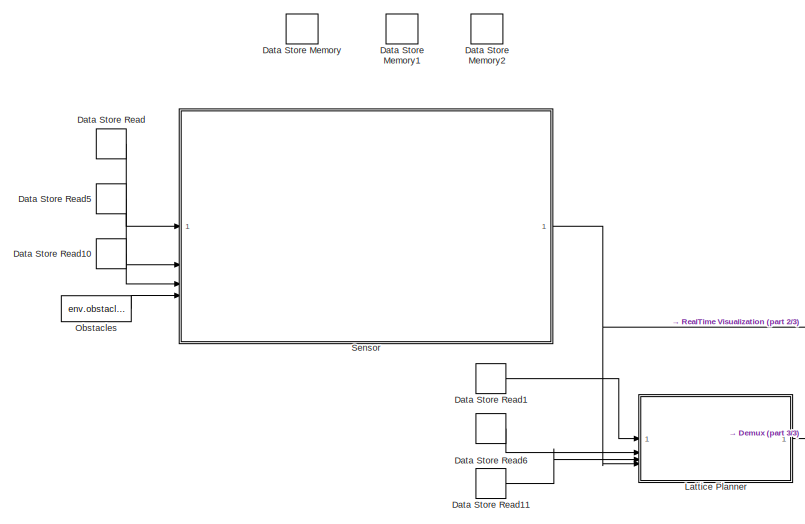
[diagram: root canvas - part 1/3, top left region]
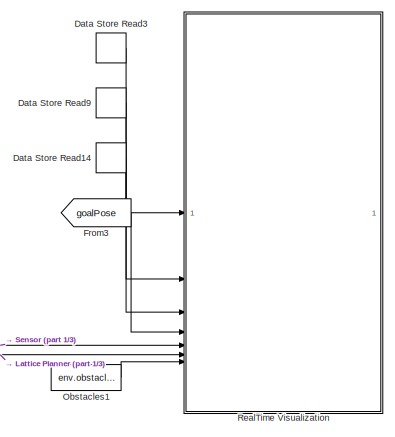
[diagram: root canvas - part 2/3, middle right region]
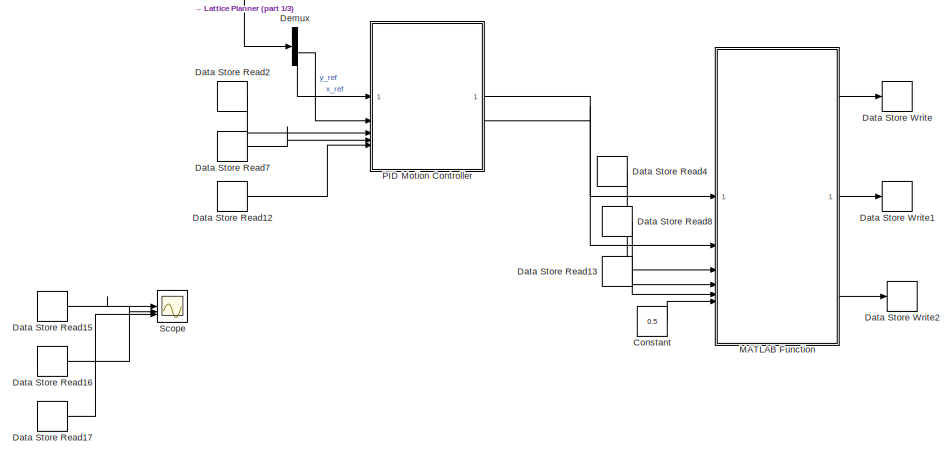
[diagram: root canvas - part 3/3, bottom center region]
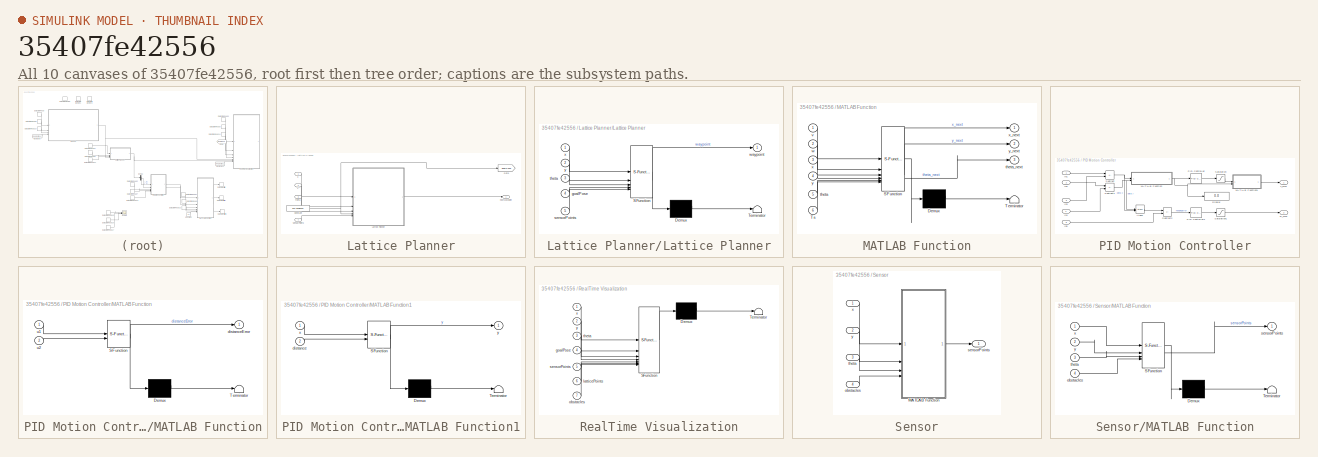
[diagram: thumbnail index - all 10 canvases of the model, root first then tree order]
MODEL slx_35407fe42556
KIND model
CONFIG AbsTol = auto
CONFIG EnableMultiTasking = off
CONFIG FixedStep = 0.5
CONFIG MaxStep = auto
CONFIG MinStep = auto
CONFIG RelTol = 1e-3
CONFIG SampleTimeConstraint = Unconstrained
CONFIG SolverName = FixedStepAuto
CONFIG StartTime = 0.0
CONFIG StopTime = 30
BLOCK [Constant] Constant
  Value = 0.5
BLOCK [DataStoreMemory] Data Store Memory
  DataStoreName = x
  InitialValue = env.startPose(1)
  ShowAdditionalParam = off
  WriteAfterWriteMsg = warning
BLOCK [DataStoreMemory] Data Store Memory1
  DataStoreName = y
  InitialValue = env.startPose(2)
  ShowAdditionalParam = off
  WriteAfterWriteMsg = warning
BLOCK [DataStoreMemory] Data Store Memory2
  DataStoreName = theta
  InitialValue = env.startPose(3)
  ShowAdditionalParam = off
  WriteAfterWriteMsg = warning
BLOCK [DataStoreRead] Data Store Read
  DataStoreName = x
  IndexOptions = Index vector (dialog)
  Indices = 1
  OutputSizes = 1
BLOCK [DataStoreRead] Data Store Read1
  DataStoreName = x
  IndexOptions = Index vector (dialog)
  Indices = 1
  OutputSizes = 1
BLOCK [DataStoreRead] Data Store Read10
  DataStoreName = theta
  IndexOptions = Index vector (dialog)
  Indices = 1
  OutputSizes = 1
BLOCK [DataStoreRead] Data Store Read11
  DataStoreName = theta
  IndexOptions = Index vector (dialog)
  Indices = 1
  OutputSizes = 1
BLOCK [DataStoreRead] Data Store Read12
  DataStoreName = theta
  IndexOptions = Index vector (dialog)
  Indices = 1
  OutputSizes = 1
BLOCK [DataStoreRead] Data Store Read13
  DataStoreName = theta
  IndexOptions = Index vector (dialog)
  Indices = 1
  OutputSizes = 1
BLOCK [DataStoreRead] Data Store Read14
  DataStoreName = theta
  IndexOptions = Index vector (dialog)
  Indices = 1
  OutputSizes = 1
BLOCK [DataStoreRead] Data Store Read15
  DataStoreName = x
  IndexOptions = Index vector (dialog)
  Indices = 1
  OutputSizes = 1
BLOCK [DataStoreRead] Data Store Read16
  DataStoreName = y
  IndexOptions = Index vector (dialog)
  Indices = 1
  OutputSizes = 1
BLOCK [DataStoreRead] Data Store Read17
  DataStoreName = theta
  IndexOptions = Index vector (dialog)
  Indices = 1
  OutputSizes = 1
BLOCK [DataStoreRead] Data Store Read2
  DataStoreName = x
  IndexOptions = Index vector (dialog)
  Indices = 1
  OutputSizes = 1
BLOCK [DataStoreRead] Data Store Read3
  DataStoreName = x
  IndexOptions = Index vector (dialog)
  Indices = 1
  OutputSizes = 1
BLOCK [DataStoreRead] Data Store Read4
  DataStoreName = x
  IndexOptions = Index vector (dialog)
  Indices = 1
  OutputSizes = 1
BLOCK [DataStoreRead] Data Store Read5
  DataStoreName = y
  IndexOptions = Index vector (dialog)
  Indices = 1
  OutputSizes = 1
BLOCK [DataStoreRead] Data Store Read6
  DataStoreName = y
  IndexOptions = Index vector (dialog)
  Indices = 1
  OutputSizes = 1
BLOCK [DataStoreRead] Data Store Read7
  DataStoreName = y
  IndexOptions = Index vector (dialog)
  Indices = 1
  OutputSizes = 1
BLOCK [DataStoreRead] Data Store Read8
  DataStoreName = y
  IndexOptions = Index vector (dialog)
  Indices = 1
  OutputSizes = 1
BLOCK [DataStoreRead] Data Store Read9
  DataStoreName = y
  IndexOptions = Index vector (dialog)
  Indices = 1
  OutputSizes = 1
BLOCK [DataStoreWrite] Data Store Write
  DataStoreName = x
  IndexOptions = Index vector (dialog)
  Indices = 1
  OutputSizes = 1
BLOCK [DataStoreWrite] Data Store Write1
  DataStoreName = y
  IndexOptions = Index vector (dialog)
  Indices = 1
  OutputSizes = 1
BLOCK [DataStoreWrite] Data Store Write2
  DataStoreName = theta
  IndexOptions = Index vector (dialog)
  Indices = 1
  OutputSizes = 1
BLOCK [Demux] Demux
  Outputs = 2
BLOCK [From] From3
  GotoTag = goalPose
  TagVisibility = global
BLOCK [SubSystem] Lattice Planner
  Priority = 2
BLOCK [Constant] Lattice Planner/Constant
  Value = env.goalPose
BLOCK [Goto] Lattice Planner/Goto
  GotoTag = goalPose
  TagVisibility = global
BLOCK [SubSystem] Lattice Planner/Lattice Planner
  ErrorFcn = Stateflow.Translate.translate
  PermitHierarchicalResolution = ExplicitOnly
  SFBlockType = MATLAB Function
  TreatAsAtomicUnit = on
BLOCK [Demux] Lattice Planner/Lattice Planner/ Demux 
  Outputs = 1
BLOCK [S-Function] Lattice Planner/Lattice Planner/ SFunction 
  EnableBusSupport = on
  FunctionName = sf_sfun
  PortCounts = [5 2]
  SFcnIsStateOwnerBlock = off
  SFunctionDeploymentMode = off
  Tag = Stateflow S-Function 1
BLOCK [Terminator] Lattice Planner/Lattice Planner/ Terminator 
BLOCK [Inport] Lattice Planner/Lattice Planner/goalPose
  Port = 4
BLOCK [Inport] Lattice Planner/Lattice Planner/sensorPoints
  Port = 5
BLOCK [Inport] Lattice Planner/Lattice Planner/theta
  Port = 3
BLOCK [Outport] Lattice Planner/Lattice Planner/waypoint
BLOCK [Inport] Lattice Planner/Lattice Planner/x
BLOCK [Inport] Lattice Planner/Lattice Planner/y
  Port = 2
BLOCK [Outport] Lattice Planner/nextWaypoint
BLOCK [Inport] Lattice Planner/sensorPoints
  Port = 4
BLOCK [Inport] Lattice Planner/theta
  Port = 3
BLOCK [Inport] Lattice Planner/x
BLOCK [Inport] Lattice Planner/y
  Port = 2
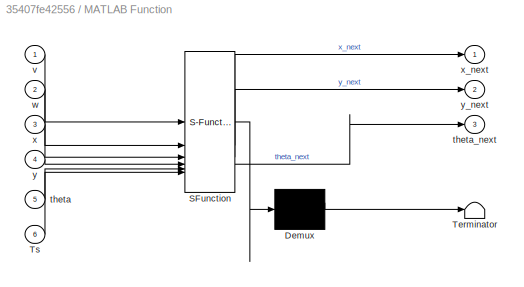
BLOCK [SubSystem] MATLAB Function
  ErrorFcn = Stateflow.Translate.translate
  PermitHierarchicalResolution = ExplicitOnly
  Priority = 4
  SFBlockType = MATLAB Function
  TreatAsAtomicUnit = on
BLOCK [Demux] MATLAB Function/ Demux 
  Outputs = 1
BLOCK [S-Function] MATLAB Function/ SFunction 
  EnableBusSupport = on
  FunctionName = sf_sfun
  PortCounts = [6 4]
  SFcnIsStateOwnerBlock = off
  SFunctionDeploymentMode = off
  Tag = Stateflow S-Function 7
BLOCK [Terminator] MATLAB Function/ Terminator 
BLOCK [Inport] MATLAB Function/Ts
  Port = 6
BLOCK [Inport] MATLAB Function/theta
  Port = 5
BLOCK [Outport] MATLAB Function/theta_next
  Port = 3
BLOCK [Inport] MATLAB Function/v
BLOCK [Inport] MATLAB Function/w
  Port = 2
BLOCK [Inport] MATLAB Function/x
  Port = 3
BLOCK [Outport] MATLAB Function/x_next
BLOCK [Inport] MATLAB Function/y
  Port = 4
BLOCK [Outport] MATLAB Function/y_next
  Port = 2
BLOCK [Constant] Obstacles
  Value = env.obstacles
BLOCK [Constant] Obstacles1
  Value = env.obstacles
BLOCK [SubSystem] PID Motion Controller
  Priority = 3
BLOCK [Trigonometry] PID Motion Controller/Atan2
  Operator = atan2
BLOCK [Display] PID Motion Controller/Display
  Decimation = 1
BLOCK [Inport] PID Motion Controller/In1
BLOCK [Inport] PID Motion Controller/In2
  Port = 2
BLOCK [Inport] PID Motion Controller/In3
  Port = 3
BLOCK [Inport] PID Motion Controller/In4
  Port = 4
BLOCK [Inport] PID Motion Controller/In5
  Port = 5
BLOCK [SubSystem] PID Motion Controller/MATLAB Function
  ErrorFcn = Stateflow.Translate.translate
  PermitHierarchicalResolution = ExplicitOnly
  SFBlockType = MATLAB Function
  TreatAsAtomicUnit = on
BLOCK [Demux] PID Motion Controller/MATLAB Function/ Demux 
  Outputs = 1
BLOCK [S-Function] PID Motion Controller/MATLAB Function/ SFunction 
  EnableBusSupport = on
  FunctionName = sf_sfun
  PortCounts = [2 2]
  SFcnIsStateOwnerBlock = off
  SFunctionDeploymentMode = off
  Tag = Stateflow S-Function 5
BLOCK [Terminator] PID Motion Controller/MATLAB Function/ Terminator 
BLOCK [Outport] PID Motion Controller/MATLAB Function/distanceError
BLOCK [Inport] PID Motion Controller/MATLAB Function/u1
BLOCK [Inport] PID Motion Controller/MATLAB Function/u2
  Port = 2
BLOCK [SubSystem] PID Motion Controller/MATLAB Function1
  ErrorFcn = Stateflow.Translate.translate
  PermitHierarchicalResolution = ExplicitOnly
  SFBlockType = MATLAB Function
  TreatAsAtomicUnit = on
BLOCK [Demux] PID Motion Controller/MATLAB Function1/ Demux 
  Outputs = 1
BLOCK [S-Function] PID Motion Controller/MATLAB Function1/ SFunction 
  EnableBusSupport = on
  FunctionName = sf_sfun
  PortCounts = [2 2]
  SFcnIsStateOwnerBlock = off
  SFunctionDeploymentMode = off
  Tag = Stateflow S-Function 6
BLOCK [Terminator] PID Motion Controller/MATLAB Function1/ Terminator 
BLOCK [Inport] PID Motion Controller/MATLAB Function1/distance
  Port = 2
BLOCK [Inport] PID Motion Controller/MATLAB Function1/x
BLOCK [Outport] PID Motion Controller/MATLAB Function1/y
BLOCK [Reference] PID Motion Controller/PID Controller  REF=slpidlib/PID Controller
  LibrarySourceBlock = simulink/Continuous/PID Controller
  SourceBlock = slpidlib/PID Controller
  SourceType = PID 1dof
BLOCK [Reference] PID Motion Controller/PID Controller1  REF=slpidlib/PID Controller
  LibrarySourceBlock = simulink/Continuous/PID Controller
  SourceBlock = slpidlib/PID Controller
  SourceType = PID 1dof
BLOCK [Saturate] PID Motion Controller/Saturation
  LowerLimit = 0
  UpperLimit = 1
BLOCK [Saturate] PID Motion Controller/Saturation1
  LowerLimit = -2
  UpperLimit = 2
BLOCK [Sum] PID Motion Controller/Subtract
  IconShape = rectangular
  Inputs = +-
BLOCK [Sum] PID Motion Controller/Subtract1
  IconShape = rectangular
  Inputs = +-
BLOCK [Sum] PID Motion Controller/Subtract2
  IconShape = rectangular
  Inputs = +-
BLOCK [Outport] PID Motion Controller/v_cmd
BLOCK [Outport] PID Motion Controller/w_cmd
  Port = 2
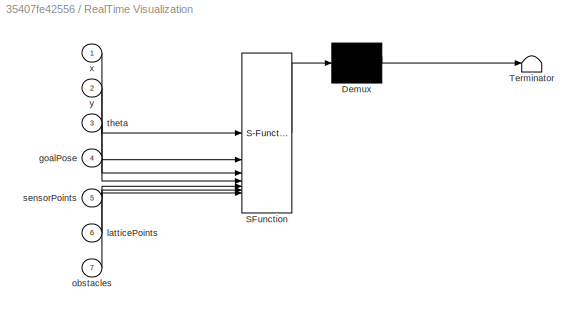
BLOCK [SubSystem] RealTime Visualization
  ErrorFcn = Stateflow.Translate.translate
  PermitHierarchicalResolution = ExplicitOnly
  Priority = 5
  SFBlockType = MATLAB Function
  TreatAsAtomicUnit = on
BLOCK [Demux] RealTime Visualization/ Demux 
  Outputs = 1
BLOCK [S-Function] RealTime Visualization/ SFunction 
  EnableBusSupport = on
  FunctionName = sf_sfun
  PortCounts = [7 1]
  SFcnIsStateOwnerBlock = off
  SFunctionDeploymentMode = off
  Tag = Stateflow S-Function 3
BLOCK [Terminator] RealTime Visualization/ Terminator 
BLOCK [Inport] RealTime Visualization/goalPose
  Port = 4
BLOCK [Inport] RealTime Visualization/latticePoints
  Port = 6
BLOCK [Inport] RealTime Visualization/obstacles
  Port = 7
BLOCK [Inport] RealTime Visualization/sensorPoints
  Port = 5
BLOCK [Inport] RealTime Visualization/theta
  Port = 3
BLOCK [Inport] RealTime Visualization/x
BLOCK [Inport] RealTime Visualization/y
  Port = 2
BLOCK [Scope] Scope
  Floating = off
  NumInputPorts = 3
  ScopeSpecificationString = Simulink.scopes.TimeScopeBlockCfg('CurrentConfiguration', extmgr.ConfigurationSet(extmgr.Configuration('Core','General UI',true),extmgr.Configuration('Core','Source UI',true),extmgr.Configuration('Sources','WiredSimulink',true),extmgr.Configuration('Visuals','Time Domain',true,'SerializedDisplays',{struct('MinYLimReal','-3.97967','MaxYLimReal','46.1711','YLabelReal','','MinYLimMag','0.00000','MaxY...<+1498ch>
BLOCK [SubSystem] Sensor
  Priority = 1
BLOCK [SubSystem] Sensor/MATLAB Function
  ErrorFcn = Stateflow.Translate.translate
  PermitHierarchicalResolution = ExplicitOnly
  SFBlockType = MATLAB Function
  TreatAsAtomicUnit = on
BLOCK [Demux] Sensor/MATLAB Function/ Demux 
  Outputs = 1
BLOCK [S-Function] Sensor/MATLAB Function/ SFunction 
  EnableBusSupport = on
  FunctionName = sf_sfun
  PortCounts = [4 2]
  SFcnIsStateOwnerBlock = off
  SFunctionDeploymentMode = off
  Tag = Stateflow S-Function 2
BLOCK [Terminator] Sensor/MATLAB Function/ Terminator 
BLOCK [Inport] Sensor/MATLAB Function/obstacles
  Port = 4
BLOCK [Outport] Sensor/MATLAB Function/sensorPoints
BLOCK [Inport] Sensor/MATLAB Function/theta
  Port = 3
BLOCK [Inport] Sensor/MATLAB Function/x
BLOCK [Inport] Sensor/MATLAB Function/y
  Port = 2
BLOCK [Inport] Sensor/obstacles
  Port = 4
BLOCK [Outport] Sensor/sensorPoints
BLOCK [Inport] Sensor/theta
  Port = 3
BLOCK [Inport] Sensor/x
BLOCK [Inport] Sensor/y
  Port = 2
LINE Constant:1 -> MATLAB Function:6
LINE Data Store Read10:1 -> Sensor:3
LINE Data Store Read11:1 -> Lattice Planner:3
LINE Data Store Read12:1 -> PID Motion Controller:5
LINE Data Store Read13:1 -> MATLAB Function:5
LINE Data Store Read14:1 -> RealTime Visualization:3
LINE Data Store Read15:1 -> Scope:1
LINE Data Store Read16:1 -> Scope:2
LINE Data Store Read17:1 -> Scope:3
LINE Data Store Read1:1 -> Lattice Planner:1
LINE Data Store Read2:1 -> PID Motion Controller:3
LINE Data Store Read3:1 -> RealTime Visualization:1
LINE Data Store Read4:1 -> MATLAB Function:3
LINE Data Store Read5:1 -> Sensor:2
LINE Data Store Read6:1 -> Lattice Planner:2
LINE Data Store Read7:1 -> PID Motion Controller:4
LINE Data Store Read8:1 -> MATLAB Function:4
LINE Data Store Read9:1 -> RealTime Visualization:2
LINE Data Store Read:1 -> Sensor:1
LINE Demux:1 -> PID Motion Controller:1
LINE Demux:2 -> PID Motion Controller:2
LINE From3:1 -> RealTime Visualization:4
NET Lattice Planner/Constant:1 -> Lattice Planner/Goto:1, Lattice Planner/Lattice Planner:4
LINE Lattice Planner/Lattice Planner:1 -> Lattice Planner/nextWaypoint:1
LINE Lattice Planner/sensorPoints:1 -> Lattice Planner/Lattice Planner:5
LINE Lattice Planner/theta:1 -> Lattice Planner/Lattice Planner:3
LINE Lattice Planner/x:1 -> Lattice Planner/Lattice Planner:1
LINE Lattice Planner/y:1 -> Lattice Planner/Lattice Planner:2
NET Lattice Planner:1 -> Demux:1, RealTime Visualization:6
LINE MATLAB Function:1 -> Data Store Write:1
LINE MATLAB Function:2 -> Data Store Write1:1
LINE MATLAB Function:3 -> Data Store Write2:1
LINE Obstacles1:1 -> RealTime Visualization:7
LINE Obstacles:1 -> Sensor:4
LINE PID Motion Controller/Atan2:1 -> PID Motion Controller/Subtract2:1
LINE PID Motion Controller/In1:1 -> PID Motion Controller/Subtract:1
LINE PID Motion Controller/In2:1 -> PID Motion Controller/Subtract1:1
LINE PID Motion Controller/In3:1 -> PID Motion Controller/Subtract:2
LINE PID Motion Controller/In4:1 -> PID Motion Controller/Subtract1:2
LINE PID Motion Controller/In5:1 -> PID Motion Controller/Subtract2:2
LINE PID Motion Controller/MATLAB Function1:1 -> PID Motion Controller/v_cmd:1
NET PID Motion Controller/MATLAB Function:1 -> PID Motion Controller/Display:1, PID Motion Controller/MATLAB Function1:2, PID Motion Controller/PID Controller:1
LINE PID Motion Controller/PID Controller1:1 -> PID Motion Controller/Saturation1:1
LINE PID Motion Controller/PID Controller:1 -> PID Motion Controller/Saturation:1
LINE PID Motion Controller/Saturation1:1 -> PID Motion Controller/w_cmd:1
LINE PID Motion Controller/Saturation:1 -> PID Motion Controller/MATLAB Function1:1
NET PID Motion Controller/Subtract1:1 -> PID Motion Controller/Atan2:1, PID Motion Controller/MATLAB Function:2
LINE PID Motion Controller/Subtract2:1 -> PID Motion Controller/PID Controller1:1
NET PID Motion Controller/Subtract:1 -> PID Motion Controller/Atan2:2, PID Motion Controller/MATLAB Function:1
LINE PID Motion Controller:1 -> MATLAB Function:1
LINE PID Motion Controller:2 -> MATLAB Function:2
LINE Sensor/MATLAB Function:1 -> Sensor/sensorPoints:1
LINE Sensor/obstacles:1 -> Sensor/MATLAB Function:4
LINE Sensor/theta:1 -> Sensor/MATLAB Function:3
LINE Sensor/x:1 -> Sensor/MATLAB Function:1
LINE Sensor/y:1 -> Sensor/MATLAB Function:2
NET Sensor:1 -> Lattice Planner:4, RealTime Visualization:5
note: NET lines group one-source signal fan-out (src -> all destinations, sorted); 1:1 wires keep LINE
CHART Lattice Planner/Lattice Planner states=1 transitions=1
  STATE_LABEL 'eML_blk_kernel()'
  STATE_LABEL 'SCRIPT:\nfunction waypoint = SimpleAvoidPlanner(x, y, theta, goalPose, sensorPoints)\n%#codegen\n% Simple local planner for obstacle avoidance\n% Coordinate frames:\n%   World: +x right, +y up, theta=0 faces right\n%   Rover: +X right, +Y forward (in direction of theta)\n% Inputs:\n%   x, y, theta - current rover pose (world frame)\n%   goalPose - [x_goal, y_goal, theta_goal]\n%   sensorPoints - [5000x2] se...<+3495ch>'
CHART Sensor/MATLAB Function states=1 transitions=1
  STATE_LABEL 'eML_blk_kernel()'
  STATE_LABEL 'SCRIPT:\nfunction sensorPoints = SensorsBlock(x, y, theta, obstacles)\n%#codegen\n% Inputs:\n%   x, y, theta  - rover pose in world frame\n%   obstacles    - Nx4 array [x_center, y_center, width, height]\n% Output:\n%   sensorPoints - Nx2 array of points (in rover frame)\n\n%% Sensor parameters\nFOV = deg2rad(120);     % 120° horizontal FOV\nrangeMax = 10;          % max range (m)\npointSpacing = 0.2;     % s...<+1431ch>'
CHART RealTime Visualization states=1 transitions=1
  STATE_LABEL 'eML_blk_kernel()'
  STATE_LABEL "SCRIPT:\nfunction RealTimeVisualizationSim(x, y, theta, goalPose, sensorPoints, latticePoints, obstacles)\n%#codegen\npersistent figHandle isInitialized\nif isempty(isInitialized)\n    figHandle = figure('Name','Rover Real-Time Visualization');\n    isInitialized = true;\nend\n\nfigure(figHandle);\nclf(figHandle); hold on; grid on; axis equal;\nxlabel('X [m]'); ylabel('Y [m]');\ntitle('Rover Local Lattice & S...<+3145ch>"
CHART PID Motion Controller/MATLAB Function states=1 transitions=1
  STATE_LABEL 'eML_blk_kernel()'
  STATE_LABEL 'SCRIPT:\nfunction distanceError = fcn(u1,u2)\ndistanceError = sqrt(u1^2 + u2^2);\nend\n'
CHART PID Motion Controller/MATLAB Function1 states=1 transitions=1
  STATE_LABEL 'eML_blk_kernel()'
  STATE_LABEL 'SCRIPT:\nfunction y = fcn(x,distance)\n\nswitch distance\n    case 0 \n        y= 0;\n    case 0.1\n        y= 0;\n    otherwise\n        y=x;\nend\n'
CHART MATLAB Function states=1 transitions=1
  STATE_LABEL 'eML_blk_kernel()'
  STATE_LABEL 'SCRIPT:\nfunction [x_next, y_next, theta_next] = RoverDynamics(v, w, x, y, theta, Ts)\n%#codegen\n% Simple kinematic unicycle model for rover dynamics\n\n% Integrate kinematics (Euler method)\nx_next     = x + Ts * v * cos(theta);\ny_next     = y + Ts * v * sin(theta);\ntheta_next = theta + Ts * w;\n\n% Normalize angle to [-pi, pi]\ntheta_next = atan2(sin(theta_next), cos(theta_next));\n\nend\n'
CHART  states=0 transitions=0
CHART  states=0 transitions=0
CHART  states=0 transitions=0
CHART  states=0 transitions=0
CHART  states=0 transitions=0
CHART  states=0 transitions=0
